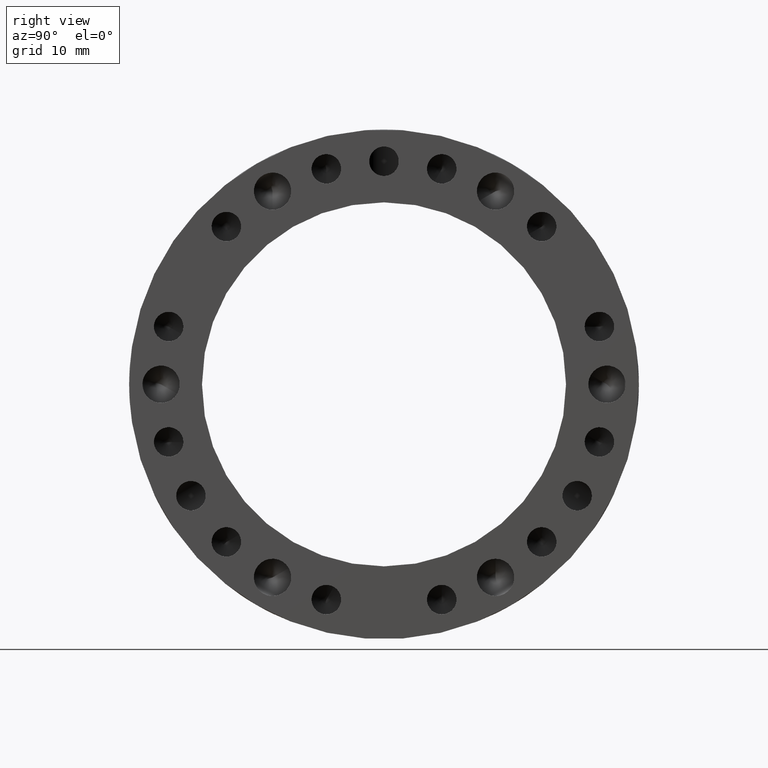
[diagram: clean part render]
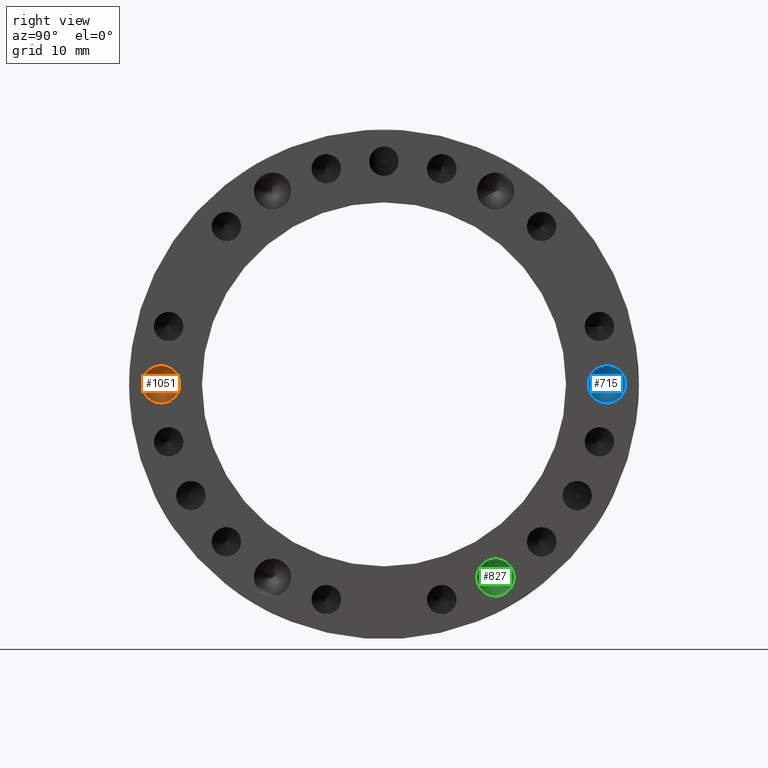
[diagram: same view with three faces highlighted in distinct colors, each labeled with its STEP entity id]
A machine part, right view with three faces highlighted in distinct colors.
Their STEP definitions:

[orange] entity #1051 — the highlighted conical surface has half-angle 59 deg.
#1035=CARTESIAN_POINT('',(9.384117865496744,-24.500000000000011,-1.332268E-014));
#1036=DIRECTION('',(1.0,0.0,0.0));
#1037=DIRECTION('',(0.0,0.866025403784439,-0.5));
#1038=AXIS2_PLACEMENT_3D('',#1035,#1036,#1037);
#1039=CONICAL_SURFACE('',#1038,1.025,59.000000000000007);
#1040=CARTESIAN_POINT('',(9.999999999999995,-22.72464792224191,-1.025000000000014));
#1041=VERTEX_POINT('',#1040);
#1042=CARTESIAN_POINT('',(9.999999999999995,-24.500000000000011,-1.332268E-014));
#1043=DIRECTION('',(1.0,0.0,0.0));
#1044=DIRECTION('',(0.0,0.866025403784439,-0.5));
#1045=AXIS2_PLACEMENT_3D('',#1042,#1043,#1044);
#1046=CIRCLE('',#1045,2.05);
#1047=EDGE_CURVE('',#1041,#1041,#1046,.T.);
#1048=ORIENTED_EDGE('',*,*,#1047,.T.);
#1049=EDGE_LOOP('',(#1048));
#1050=FACE_OUTER_BOUND('',#1049,.T.);
#1051=ADVANCED_FACE('',(#1050),#1039,.F.);

[blue] entity #715 — the highlighted conical surface has half-angle 59 deg.
#699=CARTESIAN_POINT('',(9.384117865496744,24.500000000000011,4.440892E-015));
#700=DIRECTION('',(1.0,0.0,0.0));
#701=DIRECTION('',(0.0,-0.866025403784438,0.5));
#702=AXIS2_PLACEMENT_3D('',#699,#700,#701);
#703=CONICAL_SURFACE('',#702,1.025,59.000000000000007);
#704=CARTESIAN_POINT('',(9.999999999999995,22.72464792224191,1.025000000000005));
#705=VERTEX_POINT('',#704);
#706=CARTESIAN_POINT('',(9.999999999999995,24.500000000000011,4.440892E-015));
#707=DIRECTION('',(1.0,0.0,0.0));
#708=DIRECTION('',(0.0,-0.866025403784438,0.5));
#709=AXIS2_PLACEMENT_3D('',#706,#707,#708);
#710=CIRCLE('',#709,2.05);
#711=EDGE_CURVE('',#705,#705,#710,.T.);
#712=ORIENTED_EDGE('',*,*,#711,.T.);
#713=EDGE_LOOP('',(#712));
#714=FACE_OUTER_BOUND('',#713,.T.);
#715=ADVANCED_FACE('',(#714),#703,.F.);

[green] entity #827 — the highlighted conical surface has half-angle 59 deg.
#811=CARTESIAN_POINT('',(9.384117865496744,12.250000000000018,-21.217622392718752));
#812=DIRECTION('',(1.0,0.0,0.0));
#813=DIRECTION('',(0.0,0.0,1.0));
#814=AXIS2_PLACEMENT_3D('',#811,#812,#813);
#815=CONICAL_SURFACE('',#814,1.025,59.000000000000007);
#816=CARTESIAN_POINT('',(9.999999999999995,12.250000000000018,-19.167622392718748));
#817=VERTEX_POINT('',#816);
#818=CARTESIAN_POINT('',(9.999999999999995,12.250000000000018,-21.217622392718752));
#819=DIRECTION('',(1.0,0.0,0.0));
#820=DIRECTION('',(0.0,0.0,1.0));
#821=AXIS2_PLACEMENT_3D('',#818,#819,#820);
#822=CIRCLE('',#821,2.05);
#823=EDGE_CURVE('',#817,#817,#822,.T.);
#824=ORIENTED_EDGE('',*,*,#823,.T.);
#825=EDGE_LOOP('',(#824));
#826=FACE_OUTER_BOUND('',#825,.T.);
#827=ADVANCED_FACE('',(#826),#815,.F.);